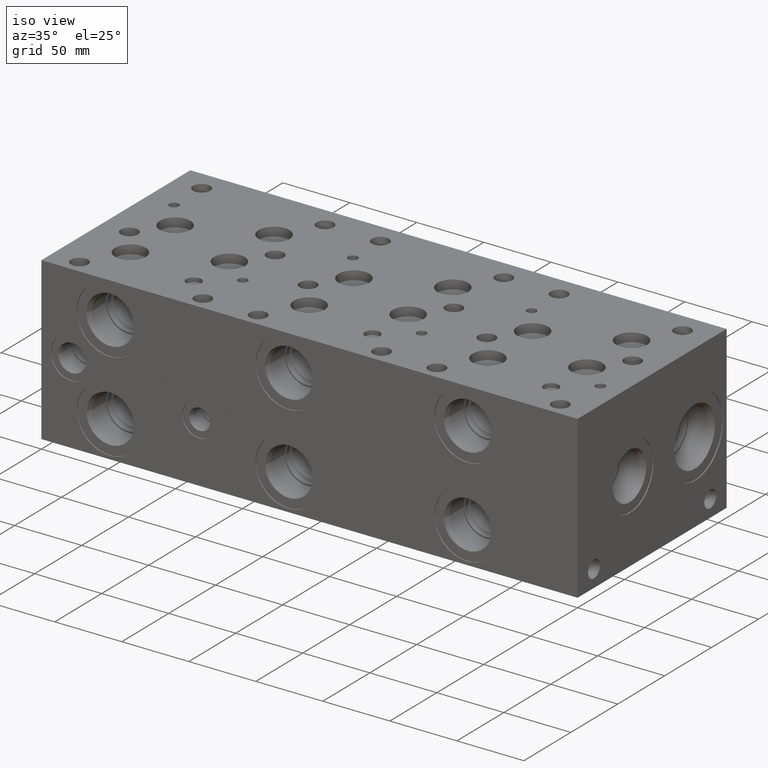
[diagram: clean part render]
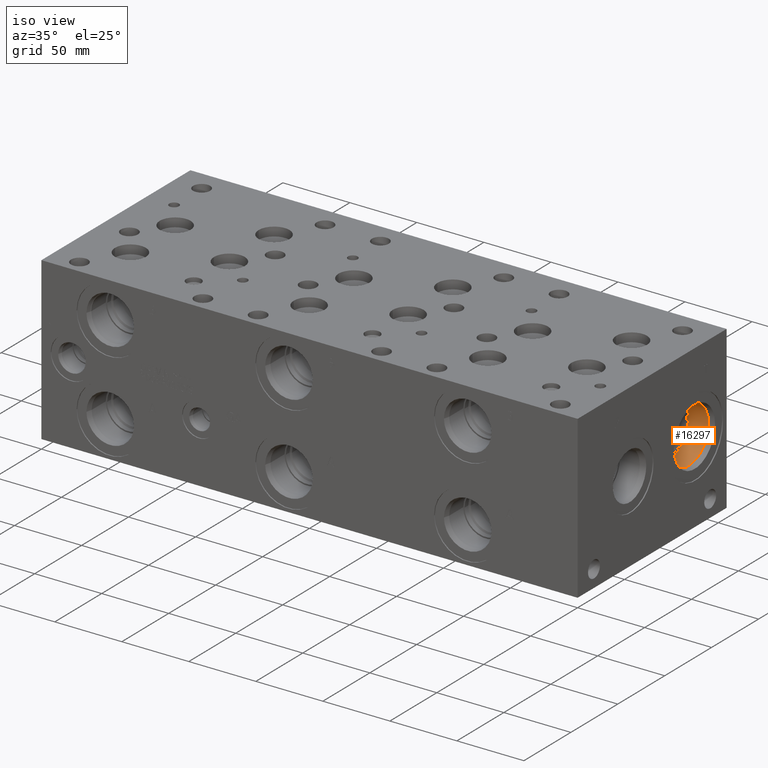
[diagram: same view with one face highlighted and labeled with its STEP entity id]
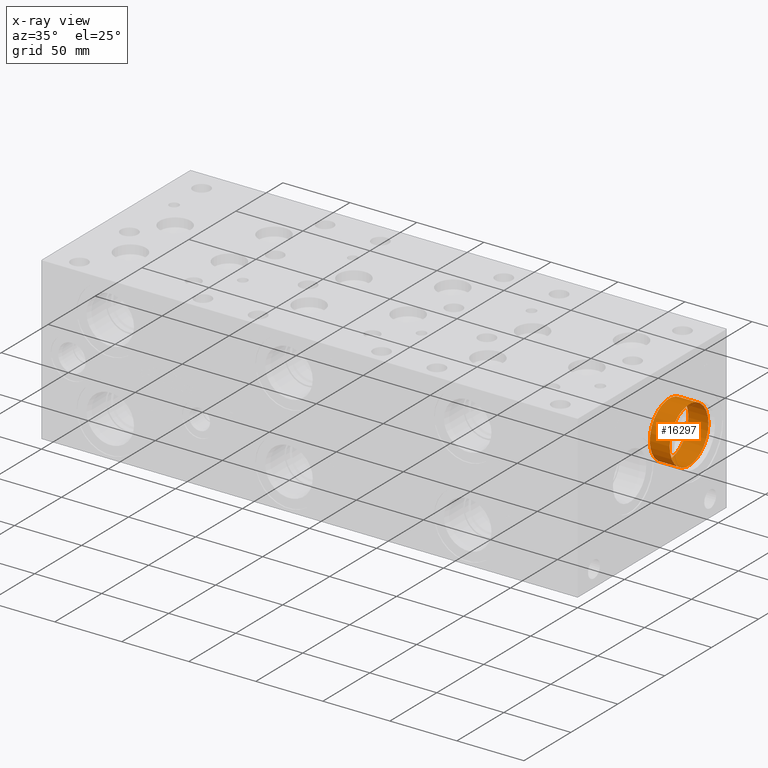
[diagram: x-ray of the same camera — body ghosted, the highlighted face saturated]
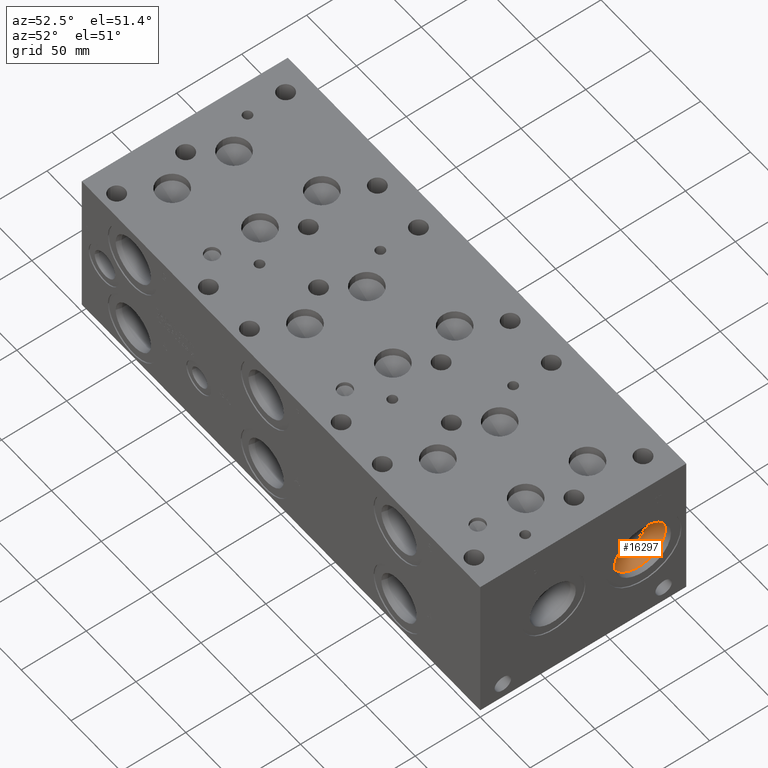
[diagram: same view with one face highlighted and labeled with its STEP entity id]
A machine part, iso view. The second image highlights one B-rep face of the part: STEP entity #16297.
The next image is the same camera in x-ray: the body ghosted, the highlighted face saturated — about 0% of this face is hidden behind the body in this view.
A second angle (auxiliary view) of the same face is appended — the face is thin or edge-on in the first view.
In plain terms, the highlighted cylindrical surface (bore or boss wall) has radius 20.6375 mm, axis along (1, 0, 0).
Its self-contained STEP definition (entity closure, byte-faithful):
#185=CYLINDRICAL_SURFACE('',#17223,20.6375);
#710=CIRCLE('',#17220,20.6375);
#711=CIRCLE('',#17221,20.6375);
#713=CIRCLE('',#17224,20.6375);
#2243=FACE_OUTER_BOUND('',#3201,.T.);
#3201=EDGE_LOOP('',(#13821,#13822,#13823,#13824,#13825));
#4672=LINE('',#27897,#6049);
#6049=VECTOR('',#20407,20.6375);
#7462=VERTEX_POINT('',#27888);
#7463=VERTEX_POINT('',#27889);
#7465=VERTEX_POINT('',#27895);
#9669=EDGE_CURVE('',#7462,#7463,#710,.T.);
#9670=EDGE_CURVE('',#7463,#7462,#711,.T.);
#9672=EDGE_CURVE('',#7465,#7465,#713,.T.);
#9673=EDGE_CURVE('',#7465,#7463,#4672,.T.);
#13821=ORIENTED_EDGE('',*,*,#9672,.F.);
#13822=ORIENTED_EDGE('',*,*,#9673,.T.);
#13823=ORIENTED_EDGE('',*,*,#9669,.F.);
#13824=ORIENTED_EDGE('',*,*,#9670,.F.);
#13825=ORIENTED_EDGE('',*,*,#9673,.F.);
#16297=ADVANCED_FACE('',(#2243),#185,.F.);
#17220=AXIS2_PLACEMENT_3D('',#27890,#20397,#20398);
#17221=AXIS2_PLACEMENT_3D('',#27891,#20399,#20400);
#17223=AXIS2_PLACEMENT_3D('',#27894,#20403,#20404);
#17224=AXIS2_PLACEMENT_3D('',#27896,#20405,#20406);
#20397=DIRECTION('center_axis',(1.,0.,0.));
#20398=DIRECTION('ref_axis',(0.,1.,0.));
#20399=DIRECTION('center_axis',(1.,0.,0.));
#20400=DIRECTION('ref_axis',(0.,1.,0.));
#20403=DIRECTION('center_axis',(1.,0.,0.));
#20404=DIRECTION('ref_axis',(0.,1.,0.));
#20405=DIRECTION('center_axis',(-1.,0.,0.));
#20406=DIRECTION('ref_axis',(0.,1.,0.));
#20407=DIRECTION('',(-1.,0.,0.));
#27888=CARTESIAN_POINT('',(380.2126,146.4691,60.325));
#27889=CARTESIAN_POINT('',(380.2126,105.1941,60.325));
#27890=CARTESIAN_POINT('Origin',(380.2126,125.8316,60.325));
#27891=CARTESIAN_POINT('Origin',(380.2126,125.8316,60.325));
#27894=CARTESIAN_POINT('Origin',(390.1313,125.8316,60.325));
#27895=CARTESIAN_POINT('',(395.079000017461,105.1941,60.325));
#27896=CARTESIAN_POINT('Origin',(395.079000017461,125.8316,60.325));
#27897=CARTESIAN_POINT('',(390.1313,105.1941,60.325));